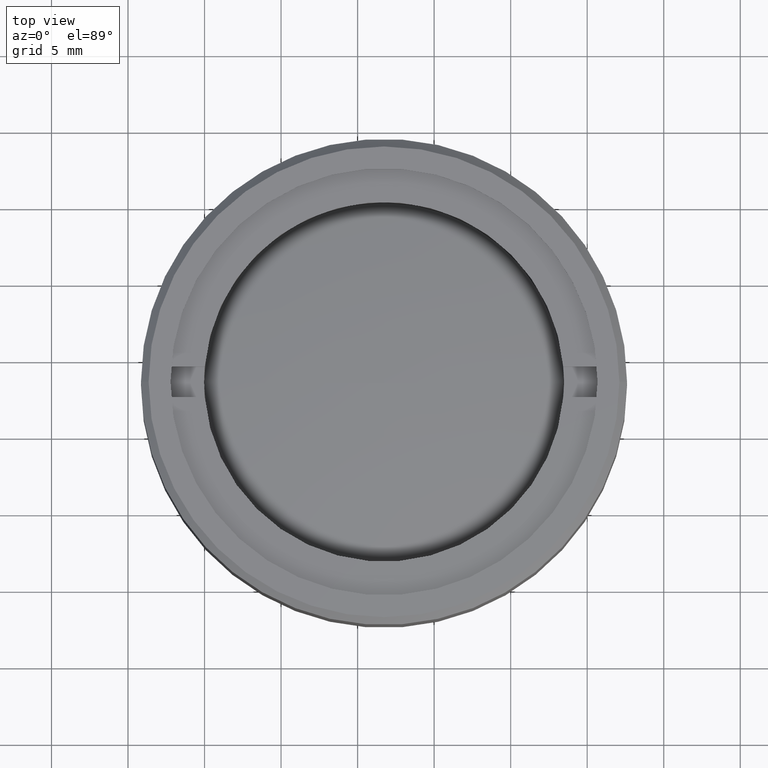
[diagram: clean part render]
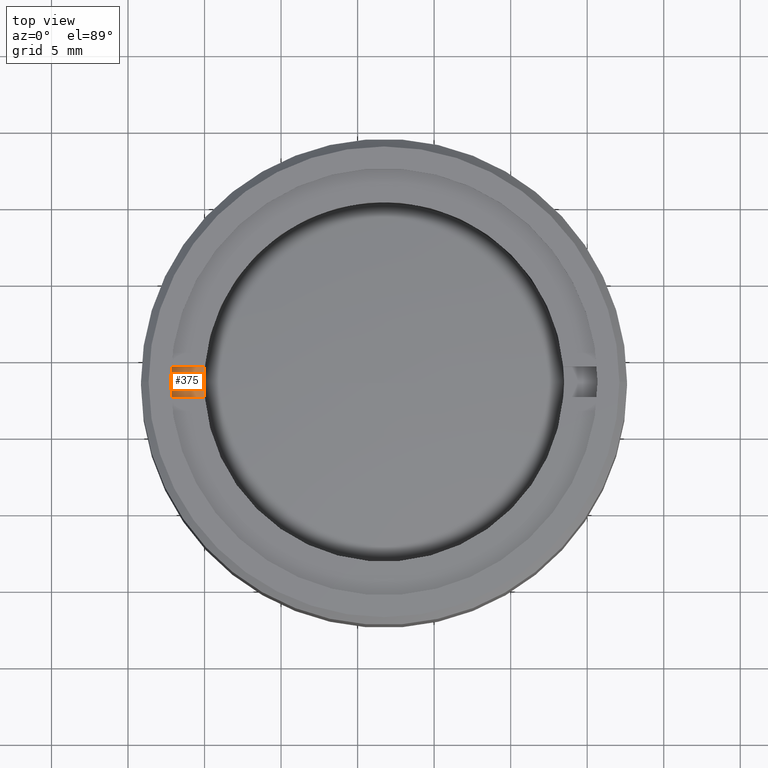
[diagram: same view with one face highlighted and labeled with its STEP entity id]
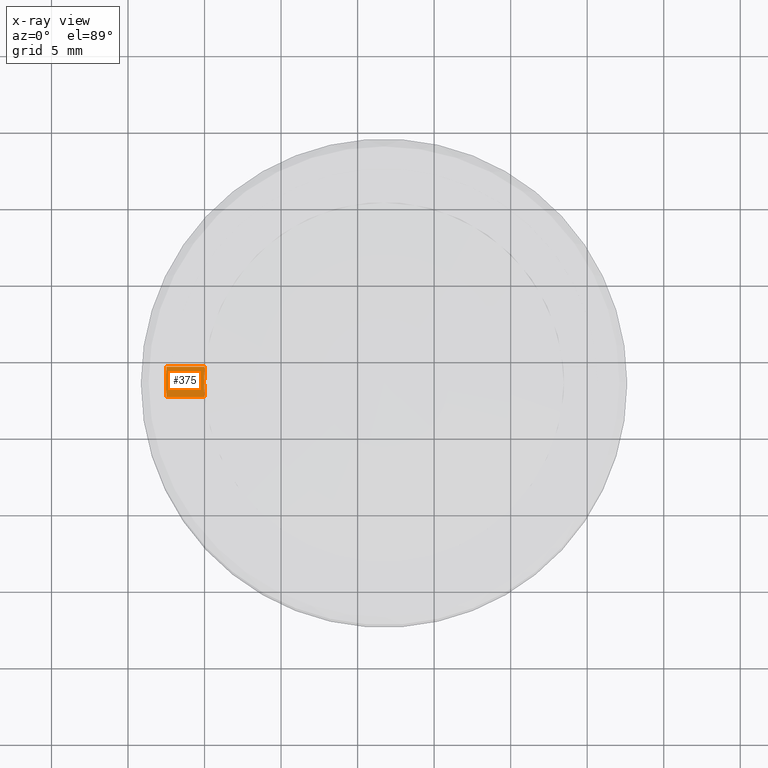
[diagram: x-ray of the same camera — body ghosted, the highlighted face saturated]
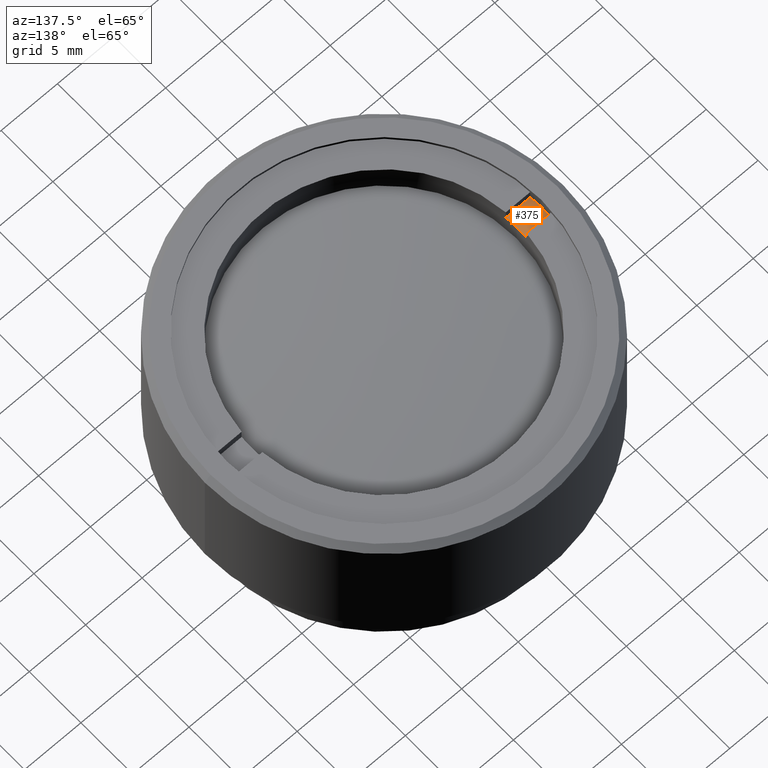
[diagram: same view with one face highlighted and labeled with its STEP entity id]
A machine part, top view. The second image highlights one B-rep face of the part: STEP entity #375.
The next image is the same camera in x-ray: the body ghosted, the highlighted face saturated — about 0% of this face is hidden behind the body in this view.
A second angle (auxiliary view) of the same face is appended — the face is thin or edge-on in the first view.
In plain terms, the highlighted planar face has unit normal (0, 0, 1).
Its self-contained STEP definition (entity closure, byte-faithful):
#6 = DIRECTION ( 'NONE',  ( 1.000000000000000000, 0.000000000000000000, 0.000000000000000000 ) ) ;
#54 = EDGE_CURVE ( 'NONE', #802, #1638, #265, .T. ) ;
#97 = CIRCLE ( 'NONE', #472, 14.25000000000000000 ) ;
#197 = DIRECTION ( 'NONE',  ( -0.000000000000000000, 0.000000000000000000, 1.000000000000000000 ) ) ;
#265 = CIRCLE ( 'NONE', #1594, 11.75000000000000178 ) ;
#346 = AXIS2_PLACEMENT_3D ( 'NONE', #1221, #1101, #1385 ) ;
#354 = EDGE_LOOP ( 'NONE', ( #1082, #666, #947, #1536, #1504, #974 ) ) ;
#375 = ADVANCED_FACE ( 'NONE', ( #859 ), #1272, .T. ) ;
#424 = CARTESIAN_POINT ( 'NONE',  ( -14.21486897582949993, 1.000000000000000000, 1.700000000000000178 ) ) ;
#429 = CIRCLE ( 'NONE', #346, 11.75000000000000178 ) ;
#472 = AXIS2_PLACEMENT_3D ( 'NONE', #1439, #642, #6 ) ;
#551 = EDGE_CURVE ( 'NONE', #1100, #590, #1573, .T. ) ;
#582 = EDGE_CURVE ( 'NONE', #810, #1638, #1609, .T. ) ;
#590 = VERTEX_POINT ( 'NONE', #424 ) ;
#642 = DIRECTION ( 'NONE',  ( -0.000000000000000000, 0.000000000000000000, 1.000000000000000000 ) ) ;
#666 = ORIENTED_EDGE ( 'NONE', *, *, #1335, .T. ) ;
#732 = VERTEX_POINT ( 'NONE', #1246 ) ;
#743 = AXIS2_PLACEMENT_3D ( 'NONE', #1018, #1438, #1045 ) ;
#763 = CARTESIAN_POINT ( 'NONE',  ( -11.70736947396809668, -1.000000000000000000, 1.700000000000000178 ) ) ;
#802 = VERTEX_POINT ( 'NONE', #1140 ) ;
#810 = VERTEX_POINT ( 'NONE', #1652 ) ;
#859 = FACE_OUTER_BOUND ( 'NONE', #354, .T. ) ;
#895 = CARTESIAN_POINT ( 'NONE',  ( 0.000000000000000000, 0.000000000000000000, 1.700000000000000178 ) ) ;
#911 = CARTESIAN_POINT ( 'NONE',  ( -30.62185530834360492, 1.000000000000000000, 1.700000000000000178 ) ) ;
#914 = DIRECTION ( 'NONE',  ( 1.000000000000000000, 0.000000000000000000, 0.000000000000000000 ) ) ;
#931 = DIRECTION ( 'NONE',  ( -0.000000000000000000, 0.000000000000000000, 1.000000000000000000 ) ) ;
#947 = ORIENTED_EDGE ( 'NONE', *, *, #582, .T. ) ;
#974 = ORIENTED_EDGE ( 'NONE', *, *, #551, .T. ) ;
#1014 = EDGE_CURVE ( 'NONE', #590, #732, #1500, .T. ) ;
#1018 = CARTESIAN_POINT ( 'NONE',  ( 0.000000000000000000, 0.000000000000000000, 1.700000000000000178 ) ) ;
#1045 = DIRECTION ( 'NONE',  ( 1.000000000000000000, 0.000000000000000000, 0.000000000000000000 ) ) ;
#1058 = VECTOR ( 'NONE', #1342, 1000.000000000000000 ) ;
#1082 = ORIENTED_EDGE ( 'NONE', *, *, #1014, .T. ) ;
#1100 = VERTEX_POINT ( 'NONE', #1289 ) ;
#1101 = DIRECTION ( 'NONE',  ( -0.000000000000000000, 0.000000000000000000, 1.000000000000000000 ) ) ;
#1140 = CARTESIAN_POINT ( 'NONE',  ( -11.75000000000000178, 0.000000000000000000, 1.700000000000000178 ) ) ;
#1204 = VECTOR ( 'NONE', #1596, 1000.000000000000000 ) ;
#1221 = CARTESIAN_POINT ( 'NONE',  ( 0.000000000000000000, 0.000000000000000000, 1.700000000000000178 ) ) ;
#1246 = CARTESIAN_POINT ( 'NONE',  ( -14.25000000000000000, 0.000000000000000000, 1.700000000000000178 ) ) ;
#1255 = DIRECTION ( 'NONE',  ( 1.000000000000000000, 0.000000000000000000, 0.000000000000000000 ) ) ;
#1272 = PLANE ( 'NONE',  #1597 ) ;
#1289 = CARTESIAN_POINT ( 'NONE',  ( -11.70736947396809668, 1.000000000000000000, 1.700000000000000178 ) ) ;
#1335 = EDGE_CURVE ( 'NONE', #732, #810, #97, .T. ) ;
#1342 = DIRECTION ( 'NONE',  ( -1.000000000000000000, -0.000000000000000000, -0.000000000000000000 ) ) ;
#1385 = DIRECTION ( 'NONE',  ( 1.000000000000000000, 0.000000000000000000, 0.000000000000000000 ) ) ;
#1396 = CARTESIAN_POINT ( 'NONE',  ( 0.000000000000000000, 0.000000000000000000, 1.700000000000000178 ) ) ;
#1438 = DIRECTION ( 'NONE',  ( -0.000000000000000000, 0.000000000000000000, 1.000000000000000000 ) ) ;
#1439 = CARTESIAN_POINT ( 'NONE',  ( 0.000000000000000000, 0.000000000000000000, 1.700000000000000178 ) ) ;
#1497 = EDGE_CURVE ( 'NONE', #1100, #802, #429, .T. ) ;
#1500 = CIRCLE ( 'NONE', #743, 14.25000000000000000 ) ;
#1504 = ORIENTED_EDGE ( 'NONE', *, *, #1497, .F. ) ;
#1536 = ORIENTED_EDGE ( 'NONE', *, *, #54, .F. ) ;
#1573 = LINE ( 'NONE', #911, #1058 ) ;
#1594 = AXIS2_PLACEMENT_3D ( 'NONE', #895, #931, #914 ) ;
#1596 = DIRECTION ( 'NONE',  ( 1.000000000000000000, 0.000000000000000000, 0.000000000000000000 ) ) ;
#1597 = AXIS2_PLACEMENT_3D ( 'NONE', #1396, #197, #1255 ) ;
#1609 = LINE ( 'NONE', #1628, #1204 ) ;
#1628 = CARTESIAN_POINT ( 'NONE',  ( -30.62185530834360492, -1.000000000000000000, 1.700000000000000178 ) ) ;
#1638 = VERTEX_POINT ( 'NONE', #763 ) ;
#1652 = CARTESIAN_POINT ( 'NONE',  ( -14.21486897582949993, -1.000000000000000000, 1.700000000000000178 ) ) ;